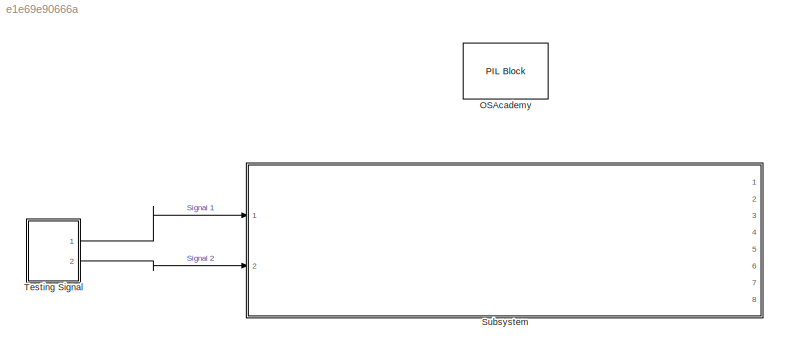
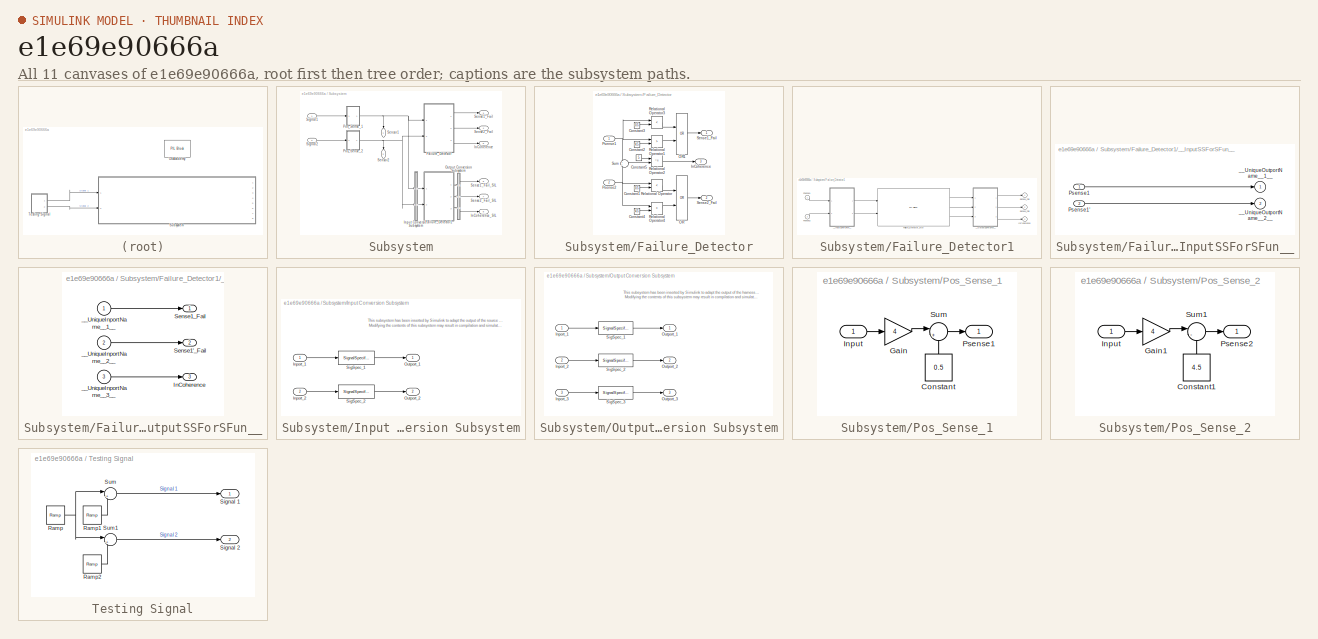
[diagram: thumbnail index - all 11 canvases of the model, root first then tree order]
MODEL slx_e1e69e90666a
KIND model
CONFIG AbsTol = auto
CONFIG EnableMultiTasking = off
CONFIG FixedStep = auto
CONFIG MaxStep = auto
CONFIG MinStep = auto
CONFIG RelTol = 1e-3
CONFIG SampleTimeConstraint = Unconstrained
CONFIG SolverName = FixedStepAuto
CONFIG StartTime = 0.0
CONFIG StopTime = 10.0
BLOCK [Reference] OSAcademy  REF=pil_lib/PIL Block
  Ports = []
  SourceBlock = pil_lib/PIL Block
  SourceProductBaseCode = RT
  SourceType = XILBlock
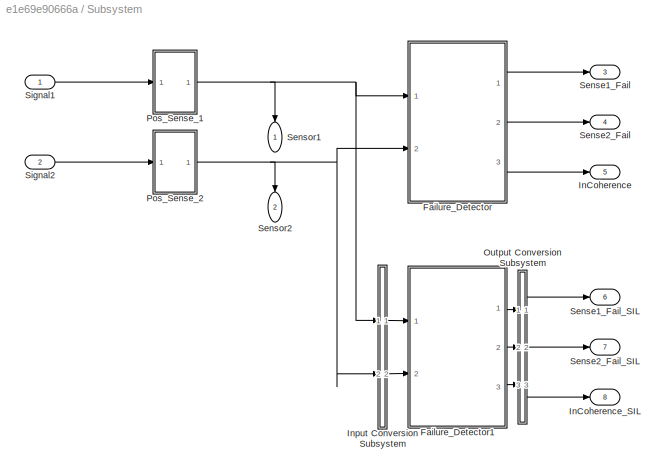
BLOCK [SubSystem] Subsystem
  PortSchema = {"entries":[{"content":{"sides":[{"content":{"connectorIds":["In1","In2"]},"type":"ConnectorPlacement.EquallySpacedRectSide","uuid":"b8229edd-deda-40cf-ad5a-24b3db798bf7"},{"content":{"connectorIds":["Out1","Out2"],"side":"RIGHT"},"type":"ConnectorPlacement.EquallySpacedRectSide","uuid":"8a2a6cfd-0422-46e1-aba6-13dd86feb93d"},{"content":{"connectorIds":[],"side":"TOP"},"type":"ConnectorPlacement.E...<+438ch>
  Ports = [2, 8]
  RequestExecContextInheritance = off
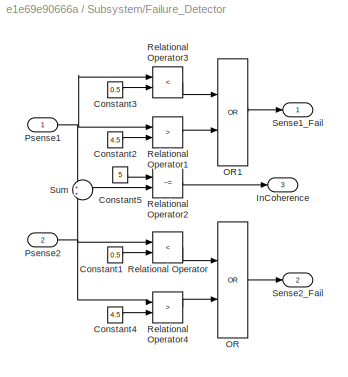
BLOCK [SubSystem] Subsystem/Failure_Detector
  NameLocation = top
  Ports = [2, 3]
  RequestExecContextInheritance = off
  TreatAsAtomicUnit = on
BLOCK [Constant] Subsystem/Failure_Detector/Constant1
  Value = 0.5
BLOCK [Constant] Subsystem/Failure_Detector/Constant2
  Value = 4.5
BLOCK [Constant] Subsystem/Failure_Detector/Constant3
  Value = 0.5
BLOCK [Constant] Subsystem/Failure_Detector/Constant4
  Value = 4.5
BLOCK [Constant] Subsystem/Failure_Detector/Constant5
  Value = 5
BLOCK [Outport] Subsystem/Failure_Detector/InCoherence
  Port = 3
BLOCK [Logic] Subsystem/Failure_Detector/OR
  AllPortsSameDT = off
  Operator = OR
  OutDataTypeStr = boolean
  Ports = [2, 1]
BLOCK [Logic] Subsystem/Failure_Detector/OR1
  AllPortsSameDT = off
  Operator = OR
  OutDataTypeStr = boolean
  Ports = [2, 1]
BLOCK [Inport] Subsystem/Failure_Detector/Psense1
BLOCK [Inport] Subsystem/Failure_Detector/Psense2
  Port = 2
BLOCK [RelationalOperator] Subsystem/Failure_Detector/Relational Operator
  InputSameDT = off
  Operator = <
  OutDataTypeStr = boolean
  Ports = [2, 1]
  RndMeth = Simplest
BLOCK [RelationalOperator] Subsystem/Failure_Detector/Relational Operator1
  InputSameDT = off
  Operator = >
  OutDataTypeStr = boolean
  Ports = [2, 1]
  RndMeth = Simplest
BLOCK [RelationalOperator] Subsystem/Failure_Detector/Relational Operator2
  InputSameDT = off
  Operator = ~=
  OutDataTypeStr = boolean
  Ports = [2, 1]
  RndMeth = Simplest
BLOCK [RelationalOperator] Subsystem/Failure_Detector/Relational Operator3
  InputSameDT = off
  Operator = <
  OutDataTypeStr = boolean
  Ports = [2, 1]
  RndMeth = Simplest
BLOCK [RelationalOperator] Subsystem/Failure_Detector/Relational Operator4
  InputSameDT = off
  Operator = >
  OutDataTypeStr = boolean
  Ports = [2, 1]
  RndMeth = Simplest
BLOCK [Outport] Subsystem/Failure_Detector/Sense1_Fail
BLOCK [Outport] Subsystem/Failure_Detector/Sense2_Fail
  Port = 2
BLOCK [Sum] Subsystem/Failure_Detector/Sum
  Ports = [2, 1]
BLOCK [SubSystem] Subsystem/Failure_Detector1
  DialogController = pil_create_dialog
  LoadFcn = try\n   if ~strcmp(rtw.pil.getPILVersion, '9.10 (R2021a)_15')\n      set_param(gcb, 'DialogController', '');\n      set_param(gcb, 'DialogControllerArgs', '');\n   end\ncatch e\n      set_param(gcb, 'DialogController', '');\n      set_param(gcb, 'DialogControllerArgs', '');\nend
  NameLocation = top
  Ports = [2, 3]
  RequestExecContextInheritance = off
  Tag = __SL_testing_harness_stub_
BLOCK [Reference] Subsystem/Failure_Detector1/Failure_Detector_sfcn  REF=pil_lib/PIL Block
  Ports = [2, 3]
  SourceBlock = pil_lib/PIL Block
  SourceProductBaseCode = RT
  SourceType = XILBlock
BLOCK [Outport] Subsystem/Failure_Detector1/InCoherence
  Port = 3
BLOCK [Inport] Subsystem/Failure_Detector1/Psense1
BLOCK [Inport] Subsystem/Failure_Detector1/Psense1'
  Port = 2
BLOCK [Outport] Subsystem/Failure_Detector1/Sense1'_Fail
  Port = 2
BLOCK [Outport] Subsystem/Failure_Detector1/Sense1_Fail
BLOCK [SubSystem] Subsystem/Failure_Detector1/__InputSSForSFun__
  PermitHierarchicalResolution = ExplicitOnly
  Ports = [2, 2]
  RequestExecContextInheritance = off
BLOCK [Inport] Subsystem/Failure_Detector1/__InputSSForSFun__/Psense1
BLOCK [Inport] Subsystem/Failure_Detector1/__InputSSForSFun__/Psense1'
  Port = 2
BLOCK [Outport] Subsystem/Failure_Detector1/__InputSSForSFun__/__UniqueOutportName__1__
BLOCK [Outport] Subsystem/Failure_Detector1/__InputSSForSFun__/__UniqueOutportName__2__
  Port = 2
BLOCK [SubSystem] Subsystem/Failure_Detector1/__OutputSSForSFun__
  PermitHierarchicalResolution = ExplicitOnly
  Ports = [3, 3]
  RequestExecContextInheritance = off
BLOCK [Outport] Subsystem/Failure_Detector1/__OutputSSForSFun__/InCoherence
  Port = 3
BLOCK [Outport] Subsystem/Failure_Detector1/__OutputSSForSFun__/Sense1'_Fail
  Port = 2
BLOCK [Outport] Subsystem/Failure_Detector1/__OutputSSForSFun__/Sense1_Fail
BLOCK [Inport] Subsystem/Failure_Detector1/__OutputSSForSFun__/__UniqueInportName__1__
BLOCK [Inport] Subsystem/Failure_Detector1/__OutputSSForSFun__/__UniqueInportName__2__
  Port = 2
BLOCK [Inport] Subsystem/Failure_Detector1/__OutputSSForSFun__/__UniqueInportName__3__
  Port = 3
BLOCK [Outport] Subsystem/InCoherence
  Port = 5
BLOCK [Outport] Subsystem/InCoherence_SIL
  Port = 8
BLOCK [SubSystem] Subsystem/Input Conversion Subsystem
  AttributesFormatString = %<Description>
  Description = Signal spec.\nand routing
  Permissions = ReadOnly
  PermitHierarchicalResolution = ExplicitOnly
  Ports = [2, 2]
  RequestExecContextInheritance = off
  Tag = __SLT_ICS__
  UserDataPersistent = on
BLOCK [Inport] Subsystem/Input Conversion Subsystem/Inport_1
BLOCK [Inport] Subsystem/Input Conversion Subsystem/Inport_2
  Port = 2
BLOCK [Outport] Subsystem/Input Conversion Subsystem/Outport_1
BLOCK [Outport] Subsystem/Input Conversion Subsystem/Outport_2
  Port = 2
BLOCK [SignalSpecification] Subsystem/Input Conversion Subsystem/SigSpec_1
  Dimensions = [1]
  OutDataTypeStr = double
  SampleTime = [0, 0]
  SignalType = real
  VarSizeSig = No
BLOCK [SignalSpecification] Subsystem/Input Conversion Subsystem/SigSpec_2
  Dimensions = [1]
  OutDataTypeStr = double
  SampleTime = [0, 0]
  SignalType = real
  VarSizeSig = No
BLOCK [SubSystem] Subsystem/Output Conversion Subsystem
  AttributesFormatString = %<Description>
  Description = Signal spec.\nand routing
  Permissions = ReadOnly
  PermitHierarchicalResolution = ExplicitOnly
  Ports = [3, 3]
  RequestExecContextInheritance = off
  Tag = __SLT_OCS__
  UserDataPersistent = on
BLOCK [Inport] Subsystem/Output Conversion Subsystem/Inport_1
BLOCK [Inport] Subsystem/Output Conversion Subsystem/Inport_2
  Port = 2
BLOCK [Inport] Subsystem/Output Conversion Subsystem/Inport_3
  Port = 3
BLOCK [Outport] Subsystem/Output Conversion Subsystem/Outport_1
BLOCK [Outport] Subsystem/Output Conversion Subsystem/Outport_2
  Port = 2
BLOCK [Outport] Subsystem/Output Conversion Subsystem/Outport_3
  Port = 3
BLOCK [SignalSpecification] Subsystem/Output Conversion Subsystem/SigSpec_1
  Dimensions = [1]
  OutDataTypeStr = boolean
  SignalType = real
  VarSizeSig = No
BLOCK [SignalSpecification] Subsystem/Output Conversion Subsystem/SigSpec_2
  Dimensions = [1]
  OutDataTypeStr = boolean
  SignalType = real
  VarSizeSig = No
BLOCK [SignalSpecification] Subsystem/Output Conversion Subsystem/SigSpec_3
  Dimensions = [1]
  OutDataTypeStr = boolean
  SignalType = real
  VarSizeSig = No
BLOCK [SubSystem] Subsystem/Pos_Sense_1
  Ports = [1, 1]
  RequestExecContextInheritance = off
BLOCK [Constant] Subsystem/Pos_Sense_1/Constant
  NameLocation = right
  Value = 0.5
BLOCK [Gain] Subsystem/Pos_Sense_1/Gain
  Gain = 4
BLOCK [Inport] Subsystem/Pos_Sense_1/Input
BLOCK [Outport] Subsystem/Pos_Sense_1/Psense1
BLOCK [Sum] Subsystem/Pos_Sense_1/Sum
  Inputs = |++
  Ports = [2, 1]
BLOCK [SubSystem] Subsystem/Pos_Sense_2
  Ports = [1, 1]
  RequestExecContextInheritance = off
BLOCK [Constant] Subsystem/Pos_Sense_2/Constant1
  NameLocation = right
  Value = 4.5
BLOCK [Gain] Subsystem/Pos_Sense_2/Gain1
  Gain = 4
BLOCK [Inport] Subsystem/Pos_Sense_2/Input
BLOCK [Outport] Subsystem/Pos_Sense_2/Psense2
BLOCK [Sum] Subsystem/Pos_Sense_2/Sum1
  Inputs = |-+
  Ports = [2, 1]
BLOCK [Outport] Subsystem/Sense1_Fail
  Port = 3
BLOCK [Outport] Subsystem/Sense1_Fail_SIL
  Port = 6
BLOCK [Outport] Subsystem/Sense2_Fail
  Port = 4
BLOCK [Outport] Subsystem/Sense2_Fail_SIL
  Port = 7
BLOCK [Outport] Subsystem/Sensor1
  NameLocation = left
BLOCK [Outport] Subsystem/Sensor2
  NameLocation = left
  Port = 2
BLOCK [Inport] Subsystem/Signal1
BLOCK [Inport] Subsystem/Signal2
  Port = 2
BLOCK [SubSystem] Testing Signal
  Ports = [0, 2]
  RequestExecContextInheritance = off
BLOCK [Reference] Testing Signal/Ramp  REF=simulink/Sources/Ramp
  Ports = [0, 1]
  SourceBlock = simulink/Sources/Ramp
  SourceProductBaseCode = SL
  SourceType = Ramp
BLOCK [Reference] Testing Signal/Ramp1  REF=simulink/Sources/Ramp
  Ports = [0, 1]
  SourceBlock = simulink/Sources/Ramp
  SourceProductBaseCode = SL
  SourceType = Ramp
BLOCK [Reference] Testing Signal/Ramp2  REF=simulink/Sources/Ramp
  Ports = [0, 1]
  SourceBlock = simulink/Sources/Ramp
  SourceProductBaseCode = SL
  SourceType = Ramp
BLOCK [Outport] Testing Signal/Signal 1
BLOCK [Outport] Testing Signal/Signal 2
  Port = 2
BLOCK [Sum] Testing Signal/Sum
  Inputs = |++
  Ports = [2, 1]
BLOCK [Sum] Testing Signal/Sum1
  Inputs = |++
  Ports = [2, 1]
ANNOTATION Subsystem/Input Conversion Subsystem: This subsystem has been inserted by Simulink to adapt the output of the source blocks to the interface required by the harnessed component. Modifying the contents of this subsystem may result in compilation and simulation failure.
ANNOTATION Subsystem/Output Conversion Subsystem: This subsystem has been inserted by Simulink to adapt the output of the harnessed component to the interface required by the sink blocks. Modifying the contents of this subsystem may result in compilation and simulation failure.
LINE Subsystem/Failure_Detector/Constant1:1 -> Subsystem/Failure_Detector/Relational Operator:2
LINE Subsystem/Failure_Detector/Constant2:1 -> Subsystem/Failure_Detector/Relational Operator1:2
LINE Subsystem/Failure_Detector/Constant3:1 -> Subsystem/Failure_Detector/Relational Operator3:2
LINE Subsystem/Failure_Detector/Constant4:1 -> Subsystem/Failure_Detector/Relational Operator4:2
LINE Subsystem/Failure_Detector/Constant5:1 -> Subsystem/Failure_Detector/Relational Operator2:1
LINE Subsystem/Failure_Detector/OR1:1 -> Subsystem/Failure_Detector/Sense1_Fail:1
LINE Subsystem/Failure_Detector/OR:1 -> Subsystem/Failure_Detector/Sense2_Fail:1
NET Subsystem/Failure_Detector/Psense1:1 -> Subsystem/Failure_Detector/Relational Operator1:1, Subsystem/Failure_Detector/Relational Operator3:1, Subsystem/Failure_Detector/Sum:1
NET Subsystem/Failure_Detector/Psense2:1 -> Subsystem/Failure_Detector/Relational Operator4:1, Subsystem/Failure_Detector/Relational Operator:1, Subsystem/Failure_Detector/Sum:2
LINE Subsystem/Failure_Detector/Relational Operator1:1 -> Subsystem/Failure_Detector/OR1:2
LINE Subsystem/Failure_Detector/Relational Operator2:1 -> Subsystem/Failure_Detector/InCoherence:1
LINE Subsystem/Failure_Detector/Relational Operator3:1 -> Subsystem/Failure_Detector/OR1:1
LINE Subsystem/Failure_Detector/Relational Operator4:1 -> Subsystem/Failure_Detector/OR:2
LINE Subsystem/Failure_Detector/Relational Operator:1 -> Subsystem/Failure_Detector/OR:1
LINE Subsystem/Failure_Detector/Sum:1 -> Subsystem/Failure_Detector/Relational Operator2:2
LINE Subsystem/Failure_Detector1:1 -> Subsystem/Output Conversion Subsystem:1
LINE Subsystem/Failure_Detector1:2 -> Subsystem/Output Conversion Subsystem:2
LINE Subsystem/Failure_Detector1:3 -> Subsystem/Output Conversion Subsystem:3
LINE Subsystem/Failure_Detector:1 -> Subsystem/Sense1_Fail:1
LINE Subsystem/Failure_Detector:2 -> Subsystem/Sense2_Fail:1
LINE Subsystem/Failure_Detector:3 -> Subsystem/InCoherence:1
LINE Subsystem/Input Conversion Subsystem/Inport_1:1 -> Subsystem/Input Conversion Subsystem/SigSpec_1:1
LINE Subsystem/Input Conversion Subsystem/Inport_2:1 -> Subsystem/Input Conversion Subsystem/SigSpec_2:1
LINE Subsystem/Input Conversion Subsystem/SigSpec_1:1 -> Subsystem/Input Conversion Subsystem/Outport_1:1
LINE Subsystem/Input Conversion Subsystem/SigSpec_2:1 -> Subsystem/Input Conversion Subsystem/Outport_2:1
LINE Subsystem/Input Conversion Subsystem:1 -> Subsystem/Failure_Detector1:1
LINE Subsystem/Input Conversion Subsystem:2 -> Subsystem/Failure_Detector1:2
LINE Subsystem/Output Conversion Subsystem/Inport_1:1 -> Subsystem/Output Conversion Subsystem/SigSpec_1:1
LINE Subsystem/Output Conversion Subsystem/Inport_2:1 -> Subsystem/Output Conversion Subsystem/SigSpec_2:1
LINE Subsystem/Output Conversion Subsystem/Inport_3:1 -> Subsystem/Output Conversion Subsystem/SigSpec_3:1
LINE Subsystem/Output Conversion Subsystem/SigSpec_1:1 -> Subsystem/Output Conversion Subsystem/Outport_1:1
LINE Subsystem/Output Conversion Subsystem/SigSpec_2:1 -> Subsystem/Output Conversion Subsystem/Outport_2:1
LINE Subsystem/Output Conversion Subsystem/SigSpec_3:1 -> Subsystem/Output Conversion Subsystem/Outport_3:1
LINE Subsystem/Output Conversion Subsystem:1 -> Subsystem/Sense1_Fail_SIL:1
LINE Subsystem/Output Conversion Subsystem:2 -> Subsystem/Sense2_Fail_SIL:1
LINE Subsystem/Output Conversion Subsystem:3 -> Subsystem/InCoherence_SIL:1
LINE Subsystem/Pos_Sense_1/Constant:1 -> Subsystem/Pos_Sense_1/Sum:2
LINE Subsystem/Pos_Sense_1/Gain:1 -> Subsystem/Pos_Sense_1/Sum:1
LINE Subsystem/Pos_Sense_1/Input:1 -> Subsystem/Pos_Sense_1/Gain:1
LINE Subsystem/Pos_Sense_1/Sum:1 -> Subsystem/Pos_Sense_1/Psense1:1
NET Subsystem/Pos_Sense_1:1 -> Subsystem/Failure_Detector:1, Subsystem/Input Conversion Subsystem:1, Subsystem/Sensor1:1
LINE Subsystem/Pos_Sense_2/Constant1:1 -> Subsystem/Pos_Sense_2/Sum1:2
LINE Subsystem/Pos_Sense_2/Gain1:1 -> Subsystem/Pos_Sense_2/Sum1:1
LINE Subsystem/Pos_Sense_2/Input:1 -> Subsystem/Pos_Sense_2/Gain1:1
LINE Subsystem/Pos_Sense_2/Sum1:1 -> Subsystem/Pos_Sense_2/Psense2:1
NET Subsystem/Pos_Sense_2:1 -> Subsystem/Failure_Detector:2, Subsystem/Input Conversion Subsystem:2, Subsystem/Sensor2:1
LINE Subsystem/Signal1:1 -> Subsystem/Pos_Sense_1:1
LINE Subsystem/Signal2:1 -> Subsystem/Pos_Sense_2:1
LINE Testing Signal/Ramp1:1 -> Testing Signal/Sum:2
LINE Testing Signal/Ramp2:1 -> Testing Signal/Sum1:2
NET Testing Signal/Ramp:1 -> Testing Signal/Sum1:1, Testing Signal/Sum:1
LINE Testing Signal/Sum1:1 -> Testing Signal/Signal 2:1
LINE Testing Signal/Sum:1 -> Testing Signal/Signal 1:1
LINE Testing Signal:1 -> Subsystem:1
LINE Testing Signal:2 -> Subsystem:2
note: NET lines group one-source signal fan-out (src -> all destinations, sorted); 1:1 wires keep LINE
